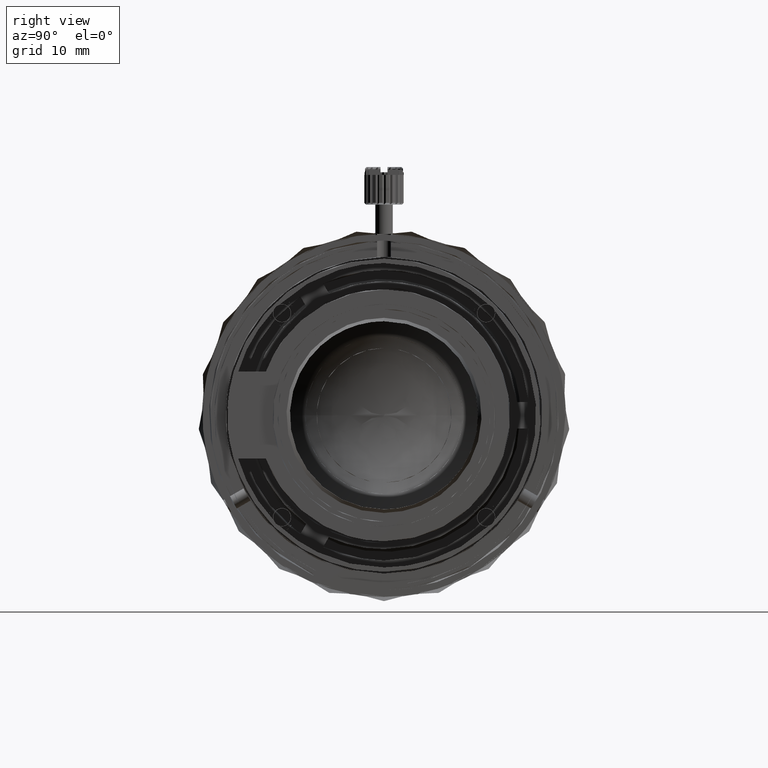
[diagram: clean part render]
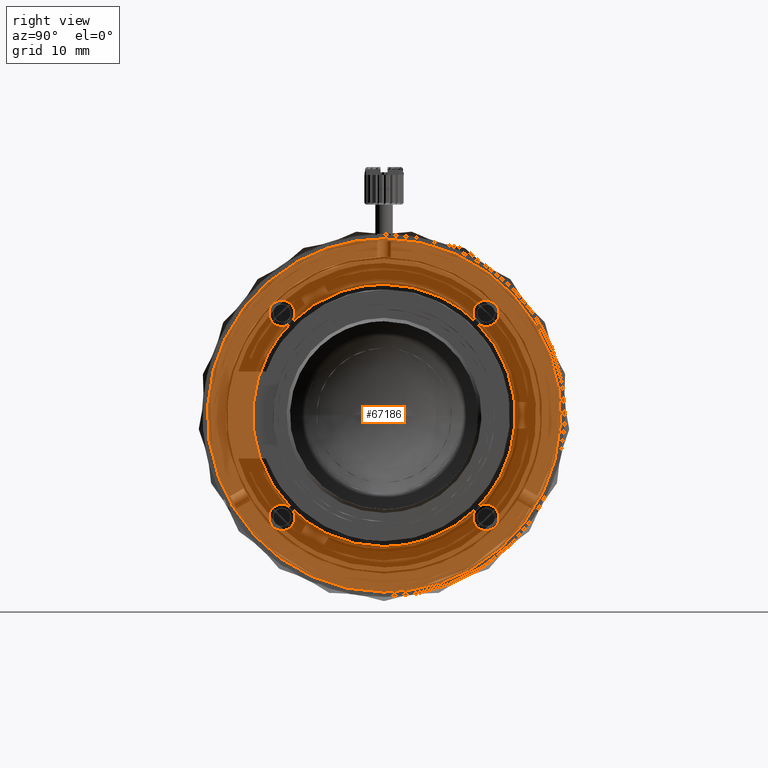
[diagram: same view with one face highlighted and labeled with its STEP entity id]
A machine part, right view. The second image highlights one B-rep face of the part: STEP entity #67186.
In plain terms, the highlighted face is a freeform B-spline surface patch.
Its self-contained STEP definition (entity closure, byte-faithful):
#615 = EDGE_CURVE ( 'NONE', #60305, #60648, #15197, .T. ) ;
#1203 = ORIENTED_EDGE ( 'NONE', *, *, #3595, .F. ) ;
#1358 = ORIENTED_EDGE ( 'NONE', *, *, #7212, .T. ) ;
#1618 = ORIENTED_EDGE ( 'NONE', *, *, #15899, .T. ) ;
#1814 = CARTESIAN_POINT ( 'NONE',  ( -4.150000000000000355, -8.979318433952319428E-10, 15.00000000045299942 ) ) ;
#2361 = CARTESIAN_POINT ( 'NONE',  ( -4.150000000000000355, 12.58863421500936575, 10.46731388467010682 ) ) ;
#3315 = EDGE_CURVE ( 'NONE', #67211, #45209, #41578, .T. ) ;
#3353 = ORIENTED_EDGE ( 'NONE', *, *, #46193, .F. ) ;
#3595 = EDGE_CURVE ( 'NONE', #45209, #21636, #9821, .T. ) ;
#3716 = B_SPLINE_CURVE_WITH_KNOTS ( 'NONE', 3,
 ( #67909, #62953, #19854, #34354, #55908, #20552 ),
 .UNSPECIFIED., .F., .F.,
 ( 4, 2, 4 ),
 ( 0.0000000000000000000, 0.3926990814630215154, 0.7853981629260430308 ),
 .UNSPECIFIED. ) ;
#3932 = CARTESIAN_POINT ( 'NONE',  ( -4.150000000000000355, -11.27522509178702137, -10.20606052589735846 ) ) ;
#4100 = EDGE_CURVE ( 'NONE', #45209, #7778, #65359, .T. ) ;
#4362 = CARTESIAN_POINT ( 'NONE',  ( -4.150000000000000355, -10.17506582079941246, -17.64966874080982606 ) ) ;
#5554 = CARTESIAN_POINT ( 'NONE',  ( -4.149999999999991473, 16.81980515265891540, 4.393398287876367547 ) ) ;
#6243 = CARTESIAN_POINT ( 'NONE',  ( -4.149999999999982592, 16.81980515525010844, -4.393398277956160669 ) ) ;
#6272 = B_SPLINE_CURVE_WITH_KNOTS ( 'NONE', 3,
 ( #68693, #31570, #41515, #4362, #63039, #35846, #26266, #52452, #25926, #25584, #52108, #58431, #47174, #53490, #36548, #57387, #41858, #8962 ),
 .UNSPECIFIED., .F., .F.,
 ( 4, 2, 2, 2, 2, 2, 2, 2, 4 ),
 ( 0.0000000000000000000, 0.3926990816987244171, 0.7853981633974488341, 1.178097245096173307, 1.570796326794897668, 1.963495408493622030, 2.356194490192346613, 2.748893571891070753, 3.141592653589795336 ),
 .UNSPECIFIED. ) ;
#6942 = EDGE_LOOP ( 'NONE', ( #67410, #52367 ) ) ;
#7106 = CARTESIAN_POINT ( 'NONE',  ( -4.150000000000000355, -4.031416531514714130, 14.99999999927601024 ) ) ;
#7212 = EDGE_CURVE ( 'NONE', #41635, #39967, #41081, .T. ) ;
#7778 = VERTEX_POINT ( 'NONE', #43830 ) ;
#7826 = CARTESIAN_POINT ( 'NONE',  ( -4.150000000000000355, -11.47027907257102086, -10.16726189767778088 ) ) ;
#7844 = CARTESIAN_POINT ( 'NONE',  ( -4.150000000000002132, 5.285342439710659868, 19.67505851516099824 ) ) ;
#8290 = EDGE_CURVE ( 'NONE', #60648, #45209, #31226, .T. ) ;
#8533 = CARTESIAN_POINT ( 'NONE',  ( -4.150000000000000355, 10.60660171276651909, 10.60660171475877966 ) ) ;
#8962 = CARTESIAN_POINT ( 'NONE',  ( -4.150000000000000355, -1.209214547576934049E-09, 20.19999682278834996 ) ) ;
#9244 = CARTESIAN_POINT ( 'NONE',  ( -4.150000000000000355, -1.209214547576934049E-09, 20.19999682278834996 ) ) ;
#9424 =( BOUNDED_CURVE ( )  B_SPLINE_CURVE ( 3, ( #55139, #49850, #55824, #60085 ),
 .UNSPECIFIED., .F., .F. ) 
 B_SPLINE_CURVE_WITH_KNOTS ( ( 4, 4 ),
 ( -3.141592653589795336, 0.0000000000000000000 ),
 .UNSPECIFIED. ) 
 CURVE ( )  GEOMETRIC_REPRESENTATION_ITEM ( )  RATIONAL_B_SPLINE_CURVE ( ( 1.000000000000000000, 0.3333333335299312195, 0.3333333335299312195, 1.000000000000000000 ) ) 
 REPRESENTATION_ITEM ( '' )  );
#9479 = B_SPLINE_CURVE_WITH_KNOTS ( 'NONE', 3,
 ( #45694, #14890, #40374, #63305, #13829, #68263, #36464, #58008, #50970, #8533 ),
 .UNSPECIFIED., .F., .F.,
 ( 4, 2, 2, 2, 4 ),
 ( 0.0000000000000000000, 0.5890486226659374935, 1.178097245331874987, 1.767145867997812481, 2.356194490663749974 ),
 .UNSPECIFIED. ) ;
#9821 =( BOUNDED_CURVE ( )  B_SPLINE_CURVE ( 3, ( #11963, #55442, #49807, #28239 ),
 .UNSPECIFIED., .F., .F. ) 
 B_SPLINE_CURVE_WITH_KNOTS ( ( 4, 4 ),
 ( -0.7853981633974479459, 0.0000000000000000000 ),
 .UNSPECIFIED. ) 
 CURVE ( )  GEOMETRIC_REPRESENTATION_ITEM ( )  RATIONAL_B_SPLINE_CURVE ( ( 1.000000000000000000, 0.9492530217248901225, 0.9492530217248901225, 1.000000000000000000 ) ) 
 REPRESENTATION_ITEM ( '' )  );
#10285 = CARTESIAN_POINT ( 'NONE',  ( -4.150000000000000355, 10.09725474134785372, -13.16726188971804667 ) ) ;
#10334 =( BOUNDED_CURVE ( )  B_SPLINE_CURVE ( 3, ( #64719, #10285, #69666, #42496 ),
 .UNSPECIFIED., .F., .F. ) 
 B_SPLINE_CURVE_WITH_KNOTS ( ( 4, 4 ),
 ( -2.356194490663749974, 0.0000000000000000000 ),
 .UNSPECIFIED. ) 
 CURVE ( )  GEOMETRIC_REPRESENTATION_ITEM ( )  RATIONAL_B_SPLINE_CURVE ( ( 1.000000000000000000, 0.5884556216359612124, 0.5884556216359612124, 1.000000000000000000 ) ) 
 REPRESENTATION_ITEM ( '' )  );
#11089 = ORIENTED_EDGE ( 'NONE', *, *, #27256, .F. ) ;
#11285 =( BOUNDED_CURVE ( )  B_SPLINE_CURVE ( 3, ( #55994, #65891, #45423, #39745, #13212, #28448, #17494 ),
 .UNSPECIFIED., .F., .F. ) 
 B_SPLINE_CURVE_WITH_KNOTS ( ( 4, 3, 4 ),
 ( -3.141592653589795336, -1.570796326794897668, 0.0000000000000000000 ),
 .UNSPECIFIED. ) 
 CURVE ( )  GEOMETRIC_REPRESENTATION_ITEM ( )  RATIONAL_B_SPLINE_CURVE ( ( 1.000000000000000000, 0.8047378540760217192, 0.8047378540760217192, 1.000000000000000000, 0.8047378540760217192, 0.8047378540760217192, 1.000000000000000000 ) ) 
 REPRESENTATION_ITEM ( '' )  );
#11963 = CARTESIAN_POINT ( 'NONE',  ( -4.150000000000000355, -10.60660171329034007, 10.60660171423496045 ) ) ;
#12331 = CARTESIAN_POINT ( 'NONE',  ( -4.150000000000000355, 11.66726188448504153, 13.16726188686787857 ) ) ;
#12402 = CARTESIAN_POINT ( 'NONE',  ( -4.150000000000000355, -10.60660171329034007, 10.60660171423496045 ) ) ;
#12572 = CARTESIAN_POINT ( 'NONE',  ( -4.150000000000000355, 10.89166591473469126, -10.32153752169839400 ) ) ;
#13147 = CARTESIAN_POINT ( 'NONE',  ( -4.150000000000002132, 5.285342439710606577, -19.67505851516103021 ) ) ;
#13212 = CARTESIAN_POINT ( 'NONE',  ( -4.150000000000001243, 13.16726189018022097, -12.54594154627559810 ) ) ;
#13301 = CARTESIAN_POINT ( 'NONE',  ( -4.150000000000000355, 13.12846325238405853, 12.05929860940128506 ) ) ;
#13648 = CARTESIAN_POINT ( 'NONE',  ( -4.150000000000000355, 11.86424470571039436, 13.16726188060363611 ) ) ;
#13829 = CARTESIAN_POINT ( 'NONE',  ( -4.150000000000000355, 10.39497406005599878, 12.51537625004849552 ) ) ;
#14131 = VERTEX_POINT ( 'NONE', #38336 ) ;
#14151 = CARTESIAN_POINT ( 'NONE',  ( -4.150000000000000355, 11.66726189412168146, -10.16726189255926016 ) ) ;
#14488 = CARTESIAN_POINT ( 'NONE',  ( -4.150000000000000355, -11.66726188530545905, 13.16726188686787857 ) ) ;
#14890 = CARTESIAN_POINT ( 'NONE',  ( -4.150000000000000355, 11.37058990965285155, 13.16726191915018518 ) ) ;
#15000 =( BOUNDED_CURVE ( )  B_SPLINE_CURVE ( 3, ( #24266, #68066, #45851, #67369 ),
 .UNSPECIFIED., .F., .F. ) 
 B_SPLINE_CURVE_WITH_KNOTS ( ( 4, 4 ),
 ( -3.141592653589795336, 0.0000000000000000000 ),
 .UNSPECIFIED. ) 
 CURVE ( )  GEOMETRIC_REPRESENTATION_ITEM ( )  RATIONAL_B_SPLINE_CURVE ( ( 1.000000000000000000, 0.3333333335299312195, 0.3333333335299312195, 1.000000000000000000 ) ) 
 REPRESENTATION_ITEM ( '' )  );
#15120 = CARTESIAN_POINT ( 'NONE',  ( -4.150000000000000355, -4.102068570306625224E-09, -15.00000000045299942 ) ) ;
#15197 =( BOUNDED_CURVE ( )  B_SPLINE_CURVE ( 3, ( #50780, #17585, #17927, #39486 ),
 .UNSPECIFIED., .F., .F. ) 
 B_SPLINE_CURVE_WITH_KNOTS ( ( 4, 4 ),
 ( -0.7853981633974479459, 0.0000000000000000000 ),
 .UNSPECIFIED. ) 
 CURVE ( )  GEOMETRIC_REPRESENTATION_ITEM ( )  RATIONAL_B_SPLINE_CURVE ( ( 1.000000000000000000, 0.9492530217248901225, 0.9492530217248901225, 1.000000000000000000 ) ) 
 REPRESENTATION_ITEM ( '' )  );
#15486 = CARTESIAN_POINT ( 'NONE',  ( -4.150000000000000355, -10.60660171374550131, -10.60660171377982053 ) ) ;
#15899 = EDGE_CURVE ( 'NONE', #60648, #25179, #64465, .T. ) ;
#17494 = CARTESIAN_POINT ( 'NONE',  ( -4.150000000000000355, 11.66726188480545900, -13.16726188686787857 ) ) ;
#17585 = CARTESIAN_POINT ( 'NONE',  ( -4.149999999999972822, -4.031416534974016308, -14.99999999834628461 ) ) ;
#17679 = CARTESIAN_POINT ( 'NONE',  ( -4.150000000000000355, 10.60660171426930098, -10.60660171325599954 ) ) ;
#17927 = CARTESIAN_POINT ( 'NONE',  ( -4.149999999999973710, -7.755959752653097006, -13.45724368301606511 ) ) ;
#18466 = CARTESIAN_POINT ( 'NONE',  ( -4.150000000000001243, 17.64966874080979764, -10.17506582079948352 ) ) ;
#18813 = CARTESIAN_POINT ( 'NONE',  ( -4.150000000000000355, 16.15477085301822413, -12.41233859625122449 ) ) ;
#19054 = EDGE_CURVE ( 'NONE', #7778, #14131, #51667, .T. ) ;
#19364 =( BOUNDED_CURVE ( )  B_SPLINE_CURVE ( 3, ( #29189, #12572, #34146, #55704 ),
 .UNSPECIFIED., .F., .F. ) 
 B_SPLINE_CURVE_WITH_KNOTS ( ( 4, 4 ),
 ( -0.7853981629260430308, 0.0000000000000000000 ),
 .UNSPECIFIED. ) 
 CURVE ( )  GEOMETRIC_REPRESENTATION_ITEM ( )  RATIONAL_B_SPLINE_CURVE ( ( 1.000000000000000000, 0.9492530217248900115, 0.9492530217248900115, 1.000000000000000000 ) ) 
 REPRESENTATION_ITEM ( '' )  );
#19498 = CARTESIAN_POINT ( 'NONE',  ( -4.150000000000000355, -11.66726189494210075, -10.16726189255926016 ) ) ;
#19803 = CARTESIAN_POINT ( 'NONE',  ( -4.150000000000000355, -10.09725474108574339, 13.16726189064402774 ) ) ;
#19854 = CARTESIAN_POINT ( 'NONE',  ( -4.149999999999999467, 10.91124841672042578, 10.35682465215592707 ) ) ;
#19870 = CARTESIAN_POINT ( 'NONE',  ( -4.150000000000000355, 2.646299192517174603, 20.19999682636510840 ) ) ;
#20159 = CARTESIAN_POINT ( 'NONE',  ( -4.150000000000000355, -10.60660171329034007, 10.60660171423496045 ) ) ;
#20552 = CARTESIAN_POINT ( 'NONE',  ( -4.150000000000000355, 11.66726189444210071, 10.16726189255926016 ) ) ;
#20822 = CARTESIAN_POINT ( 'NONE',  ( -4.150000000000000355, -10.09725474161723469, -13.16726188999999891 ) ) ;
#21133 = EDGE_CURVE ( 'NONE', #24150, #37967, #6272, .T. ) ;
#21636 = VERTEX_POINT ( 'NONE', #26102 ) ;
#23931 = CARTESIAN_POINT ( 'NONE',  ( -4.150000000000001243, 12.58863417646281313, 12.86720996106777903 ) ) ;
#23951 = ORIENTED_EDGE ( 'NONE', *, *, #615, .F. ) ;
#24150 = VERTEX_POINT ( 'NONE', #57818 ) ;
#24266 = CARTESIAN_POINT ( 'NONE',  ( -4.150000000000000355, -11.66726188498503980, -13.16726188686787857 ) ) ;
#24433 = VERTEX_POINT ( 'NONE', #61642 ) ;
#24471 = CARTESIAN_POINT ( 'NONE',  ( -4.150000000000000355, 20.19999682636510840, 2.646299192517143517 ) ) ;
#24830 = ORIENTED_EDGE ( 'NONE', *, *, #30109, .F. ) ;
#25168 = CARTESIAN_POINT ( 'NONE',  ( -4.150000000000000355, -5.524118283208140117E-09, -20.19999682278834996 ) ) ;
#25179 = VERTEX_POINT ( 'NONE', #57391 ) ;
#25403 = EDGE_CURVE ( 'NONE', #39967, #14131, #9479, .T. ) ;
#25584 = CARTESIAN_POINT ( 'NONE',  ( -4.150000000000001243, -20.19999682636511551, 2.646299192517133303 ) ) ;
#25926 = CARTESIAN_POINT ( 'NONE',  ( -4.150000000000001243, -20.19999682636509419, -2.646299192517132859 ) ) ;
#26038 = ORIENTED_EDGE ( 'NONE', *, *, #4100, .F. ) ;
#26102 = CARTESIAN_POINT ( 'NONE',  ( -4.150000000000000355, -11.66726189462167973, 10.16726189255926016 ) ) ;
#26237 = CARTESIAN_POINT ( 'NONE',  ( -4.149999999999991473, -16.81980515344790916, 4.393398284855758007 ) ) ;
#26266 = CARTESIAN_POINT ( 'NONE',  ( -4.150000000000001243, -17.64966874080983317, -10.17506582079941246 ) ) ;
#26801 = CARTESIAN_POINT ( 'NONE',  ( -4.150000000000000355, -9.496439017096891533, -11.71676441977053429 ) ) ;
#27114 = CARTESIAN_POINT ( 'NONE',  ( -4.150000000000000355, 10.60660171426930098, -10.60660171325599954 ) ) ;
#27256 = EDGE_CURVE ( 'NONE', #60648, #24433, #59070, .T. ) ;
#28239 = CARTESIAN_POINT ( 'NONE',  ( -4.150000000000000355, -11.66726189462167973, 10.16726189255926016 ) ) ;
#28448 = CARTESIAN_POINT ( 'NONE',  ( -4.150000000000001243, 12.54594154658325422, -13.16726189000000247 ) ) ;
#28911 = B_SPLINE_CURVE_WITH_KNOTS ( 'NONE', 3,
 ( #9244, #19870, #7844, #41446, #29764, #40039, #30125, #30806, #24471, #56612, #35775, #18466, #18813, #57322, #52379, #13147, #62969, #25168 ),
 .UNSPECIFIED., .F., .F.,
 ( 4, 2, 2, 2, 2, 2, 2, 2, 4 ),
 ( 0.0000000000000000000, 0.3926990816987244171, 0.7853981633974488341, 1.178097245096173307, 1.570796326794897668, 1.963495408493622030, 2.356194490192346613, 2.748893571891070753, 3.141592653589795336 ),
 .UNSPECIFIED. ) ;
#29189 = CARTESIAN_POINT ( 'NONE',  ( -4.150000000000000355, 10.60660171426930098, -10.60660171325599954 ) ) ;
#29377 = CARTESIAN_POINT ( 'NONE',  ( -4.150000000000000355, 28.90991477700000090, 0.0000000000000000000 ) ) ;
#29677 = CARTESIAN_POINT ( 'NONE',  ( -4.150000000000000355, 4.031416528820919609, 14.99999999999999645 ) ) ;
#29764 = CARTESIAN_POINT ( 'NONE',  ( -4.150000000000001243, 12.41233859625125469, 16.15477085301819571 ) ) ;
#30109 = EDGE_CURVE ( 'NONE', #45648, #52285, #10334, .T. ) ;
#30125 = CARTESIAN_POINT ( 'NONE',  ( -4.150000000000000355, 17.64966874080982251, 10.17506582079942667 ) ) ;
#30272 = CARTESIAN_POINT ( 'NONE',  ( -4.150000000000001243, 13.16726188060363611, 11.86424470571039080 ) ) ;
#30615 = CARTESIAN_POINT ( 'NONE',  ( -4.149999999999999467, 12.05929871540430653, 10.20606052589735846 ) ) ;
#30806 = CARTESIAN_POINT ( 'NONE',  ( -4.150000000000001243, 19.67505851516099469, 5.285342439710658979 ) ) ;
#31226 =( BOUNDED_CURVE ( )  B_SPLINE_CURVE ( 3, ( #48494, #42528, #26237, #69697 ),
 .UNSPECIFIED., .F., .F. ) 
 B_SPLINE_CURVE_WITH_KNOTS ( ( 4, 4 ),
 ( -1.570796326794895004, 0.0000000000000000000 ),
 .UNSPECIFIED. ) 
 CURVE ( )  GEOMETRIC_REPRESENTATION_ITEM ( )  RATIONAL_B_SPLINE_CURVE ( ( 1.000000000000000000, 0.8047378540760214971, 0.8047378540760214971, 1.000000000000000000 ) ) 
 REPRESENTATION_ITEM ( '' )  );
#31570 = CARTESIAN_POINT ( 'NONE',  ( -4.150000000000000355, -2.646299192517171051, -20.19999682636510840 ) ) ;
#33943 = EDGE_LOOP ( 'NONE', ( #24830, #60577, #3353, #50372, #39864, #1358, #56880, #58230, #26038, #37013, #61230, #1203, #43891, #1618, #39296, #11089, #23951, #68012 ) ) ;
#33966 = CARTESIAN_POINT ( 'NONE',  ( -4.149999999999999467, -7.755959749549586668, 13.45724368480474631 ) ) ;
#34146 = CARTESIAN_POINT ( 'NONE',  ( -4.150000000000000355, 11.26412023650259897, -10.16726189016537241 ) ) ;
#34354 = CARTESIAN_POINT ( 'NONE',  ( -4.150000000000000355, 11.27522509178702315, 10.20606052589735668 ) ) ;
#34525 = CARTESIAN_POINT ( 'NONE',  ( -4.150000000000001243, 13.12846325238406031, 11.27522513997021569 ) ) ;
#34702 = CARTESIAN_POINT ( 'NONE',  ( -4.150000000000000355, -10.60660171374550131, -10.60660171377982053 ) ) ;
#35775 = CARTESIAN_POINT ( 'NONE',  ( -4.150000000000001243, 19.67505851516103021, -5.285342439710596807 ) ) ;
#35846 = CARTESIAN_POINT ( 'NONE',  ( -4.150000000000000355, -16.15477085301819216, -12.41233859625125646 ) ) ;
#36464 = CARTESIAN_POINT ( 'NONE',  ( -4.149999999999999467, 10.13820607456090350, 11.66559791635756937 ) ) ;
#36548 = CARTESIAN_POINT ( 'NONE',  ( -4.150000000000001243, -10.17506582079947108, 17.64966874080980830 ) ) ;
#37013 = ORIENTED_EDGE ( 'NONE', *, *, #3315, .F. ) ;
#37131 = CARTESIAN_POINT ( 'NONE',  ( -4.150000000000000355, -11.66726188530545905, 13.16726188686787857 ) ) ;
#37967 = VERTEX_POINT ( 'NONE', #55711 ) ;
#38089 = CARTESIAN_POINT ( 'NONE',  ( -4.149999999999975486, 7.755959751245741884, -13.45724368544729899 ) ) ;
#38336 = CARTESIAN_POINT ( 'NONE',  ( -4.150000000000000355, 10.60660171276651909, 10.60660171475877966 ) ) ;
#39296 = ORIENTED_EDGE ( 'NONE', *, *, #69208, .F. ) ;
#39486 = CARTESIAN_POINT ( 'NONE',  ( -4.150000000000000355, -10.60660171374550131, -10.60660171377982053 ) ) ;
#39745 = CARTESIAN_POINT ( 'NONE',  ( -4.150000000000000355, 13.16726189000000069, -11.66726188969234634 ) ) ;
#39864 = ORIENTED_EDGE ( 'NONE', *, *, #42095, .T. ) ;
#39967 = VERTEX_POINT ( 'NONE', #12331 ) ;
#40039 = CARTESIAN_POINT ( 'NONE',  ( -4.150000000000001243, 16.15477085301819571, 12.41233859625125646 ) ) ;
#40188 = EDGE_CURVE ( 'NONE', #52285, #60305, #44572, .T. ) ;
#40190 = CARTESIAN_POINT ( 'NONE',  ( -4.150000000000002132, 12.05929868649439030, 13.12846325238405676 ) ) ;
#40374 = CARTESIAN_POINT ( 'NONE',  ( -4.149999999999999467, 11.08058021520703917, 13.07928839319237291 ) ) ;
#41081 = B_SPLINE_CURVE_WITH_KNOTS ( 'NONE', 3,
 ( #68078, #56420, #30615, #66682, #2361, #67381, #51484, #34525, #61380, #30272, #13301, #57470, #67026, #23931, #45510, #40190, #13648, #62082 ),
 .UNSPECIFIED., .F., .F.,
 ( 4, 2, 2, 2, 2, 2, 2, 2, 4 ),
 ( 0.0000000000000000000, 0.3926990816987244171, 0.7853981633974488341, 1.178097245096173307, 1.570796326794897668, 1.963495408493622030, 2.356194490192346613, 2.748893571891070753, 3.141592653589795336 ),
 .UNSPECIFIED. ) ;
#41446 = CARTESIAN_POINT ( 'NONE',  ( -4.150000000000000355, 10.17506582079941957, 17.64966874080982606 ) ) ;
#41515 = CARTESIAN_POINT ( 'NONE',  ( -4.149999999999999467, -5.285342439710668749, -19.67505851516099469 ) ) ;
#41578 =( BOUNDED_CURVE ( )  B_SPLINE_CURVE ( 3, ( #14488, #19803, #57605, #20159 ),
 .UNSPECIFIED., .F., .F. ) 
 B_SPLINE_CURVE_WITH_KNOTS ( ( 4, 4 ),
 ( -2.356194490192344837, 0.0000000000000000000 ),
 .UNSPECIFIED. ) 
 CURVE ( )  GEOMETRIC_REPRESENTATION_ITEM ( )  RATIONAL_B_SPLINE_CURVE ( ( 1.000000000000000000, 0.5884556213280012216, 0.5884556213280012216, 1.000000000000000000 ) ) 
 REPRESENTATION_ITEM ( '' )  );
#41635 = VERTEX_POINT ( 'NONE', #43322 ) ;
#41858 = CARTESIAN_POINT ( 'NONE',  ( -4.150000000000000355, -2.646299192517049814, 20.19999682636511196 ) ) ;
#42095 = EDGE_CURVE ( 'NONE', #14131, #41635, #3716, .T. ) ;
#42496 = CARTESIAN_POINT ( 'NONE',  ( -4.150000000000000355, 10.60660171426930098, -10.60660171325599954 ) ) ;
#42528 = CARTESIAN_POINT ( 'NONE',  ( -4.149999999999982592, -16.81980515446111824, -4.393398280976772874 ) ) ;
#42998 = CARTESIAN_POINT ( 'NONE',  ( -4.150000000000000355, -4.102068570306625224E-09, -15.00000000045299942 ) ) ;
#43322 = CARTESIAN_POINT ( 'NONE',  ( -4.150000000000000355, 11.66726189444210071, 10.16726189255926016 ) ) ;
#43830 = CARTESIAN_POINT ( 'NONE',  ( -4.150000000000000355, -8.979318433952319428E-10, 15.00000000045299942 ) ) ;
#43891 = ORIENTED_EDGE ( 'NONE', *, *, #8290, .F. ) ;
#44572 =( BOUNDED_CURVE ( )  B_SPLINE_CURVE ( 3, ( #63891, #38089, #53295, #15120 ),
 .UNSPECIFIED., .F., .F. ) 
 B_SPLINE_CURVE_WITH_KNOTS ( ( 4, 4 ),
 ( -0.7853981633974479459, 0.0000000000000000000 ),
 .UNSPECIFIED. ) 
 CURVE ( )  GEOMETRIC_REPRESENTATION_ITEM ( )  RATIONAL_B_SPLINE_CURVE ( ( 1.000000000000000000, 0.9492530215973289387, 0.9492530215973289387, 1.000000000000000000 ) ) 
 REPRESENTATION_ITEM ( '' )  );
#45209 = VERTEX_POINT ( 'NONE', #63955 ) ;
#45423 = CARTESIAN_POINT ( 'NONE',  ( -4.150000000000001243, 13.16726188981978218, -10.78858223310909459 ) ) ;
#45510 = CARTESIAN_POINT ( 'NONE',  ( -4.150000000000000355, 12.42327536156099121, 12.97769912612548815 ) ) ;
#45648 = VERTEX_POINT ( 'NONE', #65164 ) ;
#45658 = CARTESIAN_POINT ( 'NONE',  ( -4.150000000000000355, 0.0000000000000000000, -28.90991477700000090 ) ) ;
#45694 = CARTESIAN_POINT ( 'NONE',  ( -4.150000000000000355, 11.66726188448504153, 13.16726188686787857 ) ) ;
#45851 = CARTESIAN_POINT ( 'NONE',  ( -4.150000000000000355, -14.66726188884592830, -10.16726189123062163 ) ) ;
#46008 = FACE_BOUND ( 'NONE', #33943, .T. ) ;
#46193 = EDGE_CURVE ( 'NONE', #52285, #47989, #19364, .T. ) ;
#46319 = CARTESIAN_POINT ( 'NONE',  ( -4.150000000000000355, -8.979318433952319428E-10, 15.00000000045299942 ) ) ;
#46732 = CARTESIAN_POINT ( 'NONE',  ( -4.150000000000000355, -10.74588960181860386, -10.46731381721364151 ) ) ;
#47174 = CARTESIAN_POINT ( 'NONE',  ( -4.150000000000000355, -16.15477085301822413, 12.41233859625122449 ) ) ;
#47989 = VERTEX_POINT ( 'NONE', #14151 ) ;
#48494 = CARTESIAN_POINT ( 'NONE',  ( -4.150000000000000355, -10.60660171374550131, -10.60660171377982053 ) ) ;
#49807 = CARTESIAN_POINT ( 'NONE',  ( -4.150000000000000355, -11.26412023711790589, 10.16726188999999714 ) ) ;
#49850 = CARTESIAN_POINT ( 'NONE',  ( -4.150000000000000355, -14.66726188850000412, 10.16726189053876084 ) ) ;
#50372 = ORIENTED_EDGE ( 'NONE', *, *, #66452, .F. ) ;
#50766 = EDGE_CURVE ( 'NONE', #47989, #45648, #11285, .T. ) ;
#50780 = CARTESIAN_POINT ( 'NONE',  ( -4.150000000000000355, -4.102068570306625224E-09, -15.00000000045299942 ) ) ;
#50970 = CARTESIAN_POINT ( 'NONE',  ( -4.150000000000000355, 10.39682292619909276, 10.81638049283314551 ) ) ;
#51484 = CARTESIAN_POINT ( 'NONE',  ( -4.150000000000000355, 12.97769912612548993, 10.91124831071740608 ) ) ;
#51667 =( BOUNDED_CURVE ( )  B_SPLINE_CURVE ( 3, ( #46319, #29677, #55241, #60529 ),
 .UNSPECIFIED., .F., .F. ) 
 B_SPLINE_CURVE_WITH_KNOTS ( ( 4, 4 ),
 ( -0.7853981633974479459, 0.0000000000000000000 ),
 .UNSPECIFIED. ) 
 CURVE ( )  GEOMETRIC_REPRESENTATION_ITEM ( )  RATIONAL_B_SPLINE_CURVE ( ( 1.000000000000000000, 0.9492530217248901225, 0.9492530217248901225, 1.000000000000000000 ) ) 
 REPRESENTATION_ITEM ( '' )  );
#52108 = CARTESIAN_POINT ( 'NONE',  ( -4.150000000000000355, -19.67505851516102666, 5.285342439710601248 ) ) ;
#52285 = VERTEX_POINT ( 'NONE', #17679 ) ;
#52358 = CARTESIAN_POINT ( 'NONE',  ( -4.149999999999999467, -10.91124841672042933, -10.35682465215592707 ) ) ;
#52367 = ORIENTED_EDGE ( 'NONE', *, *, #53116, .T. ) ;
#52379 = CARTESIAN_POINT ( 'NONE',  ( -4.150000000000000355, 10.17506582079947819, -17.64966874080979409 ) ) ;
#52452 = CARTESIAN_POINT ( 'NONE',  ( -4.150000000000001243, -19.67505851516099469, -5.285342439710667861 ) ) ;
#53116 = EDGE_CURVE ( 'NONE', #37967, #24150, #28911, .T. ) ;
#53295 = CARTESIAN_POINT ( 'NONE',  ( -4.149999999999973710, 4.031416528075915551, -15.00000000165371539 ) ) ;
#53490 = CARTESIAN_POINT ( 'NONE',  ( -4.150000000000000355, -12.41233859625122626, 16.15477085301822768 ) ) ;
#53987 = CARTESIAN_POINT ( 'NONE',  ( -4.150000000000000355, 10.60660171276651909, 10.60660171475877966 ) ) ;
#54196 = CARTESIAN_POINT ( 'NONE',  ( -4.150000000000000355, -10.60660171374550131, -10.60660171377982053 ) ) ;
#55139 = CARTESIAN_POINT ( 'NONE',  ( -4.150000000000000355, -11.66726189462167973, 10.16726189255926016 ) ) ;
#55241 = CARTESIAN_POINT ( 'NONE',  ( -4.149999999999999467, 7.755959747132849635, 13.45724368619760902 ) ) ;
#55442 = CARTESIAN_POINT ( 'NONE',  ( -4.150000000000000355, -10.89166591528671368, 10.32153752138023606 ) ) ;
#55704 = CARTESIAN_POINT ( 'NONE',  ( -4.150000000000000355, 11.66726189412168146, -10.16726189255926016 ) ) ;
#55711 = CARTESIAN_POINT ( 'NONE',  ( -4.150000000000000355, -1.209214547576934049E-09, 20.19999682278834996 ) ) ;
#55824 = CARTESIAN_POINT ( 'NONE',  ( -4.150000000000000355, -14.66726188884593363, 13.16726188876938153 ) ) ;
#55908 = CARTESIAN_POINT ( 'NONE',  ( -4.150000000000000355, 11.47027907257102264, 10.16726189767777910 ) ) ;
#55994 = CARTESIAN_POINT ( 'NONE',  ( -4.150000000000000355, 11.66726189412168146, -10.16726189255926016 ) ) ;
#56420 = CARTESIAN_POINT ( 'NONE',  ( -4.150000000000000355, 11.86424469607375265, 10.16726185913122471 ) ) ;
#56612 = CARTESIAN_POINT ( 'NONE',  ( -4.150000000000000355, 20.19999682636510130, -2.646299192517139076 ) ) ;
#56880 = ORIENTED_EDGE ( 'NONE', *, *, #25403, .T. ) ;
#57322 = CARTESIAN_POINT ( 'NONE',  ( -4.150000000000001243, 12.41233859625122449, -16.15477085301822413 ) ) ;
#57387 = CARTESIAN_POINT ( 'NONE',  ( -4.150000000000001243, -5.285342439710609241, 19.67505851516101956 ) ) ;
#57391 = CARTESIAN_POINT ( 'NONE',  ( -4.150000000000000355, -11.66726189494210075, -10.16726189255926016 ) ) ;
#57470 = CARTESIAN_POINT ( 'NONE',  ( -4.150000000000001243, 12.97769912612548637, 12.42327543865409112 ) ) ;
#57605 = CARTESIAN_POINT ( 'NONE',  ( -4.150000000000000355, -9.496439016256786658, 11.71676441930110713 ) ) ;
#57818 = CARTESIAN_POINT ( 'NONE',  ( -4.150000000000000355, -5.524118283208140117E-09, -20.19999682278834996 ) ) ;
#58008 = CARTESIAN_POINT ( 'NONE',  ( -4.149999999999999467, 10.25396183588664556, 11.08365490028322853 ) ) ;
#58230 = ORIENTED_EDGE ( 'NONE', *, *, #19054, .F. ) ;
#58431 = CARTESIAN_POINT ( 'NONE',  ( -4.150000000000001243, -17.64966874080980119, 10.17506582079948174 ) ) ;
#58764 = B_SPLINE_SURFACE_WITH_KNOTS ( 'NONE', 1, 1, ( 
 ( #62236, #29377 ),
 ( #67175, #45658 ) ),
 .UNSPECIFIED., .F., .F., .F.,
 ( 2, 2 ),
 ( 2, 2 ),
 ( 0.0000000000000000000, 1.000000000000000000 ),
 ( 0.0000000000000000000, 1.000000000000000000 ),
 .UNSPECIFIED. ) ;
#59070 =( BOUNDED_CURVE ( )  B_SPLINE_CURVE ( 3, ( #15486, #26801, #20822, #69564 ),
 .UNSPECIFIED., .F., .F. ) 
 B_SPLINE_CURVE_WITH_KNOTS ( ( 4, 4 ),
 ( -2.356194490192344837, 0.0000000000000000000 ),
 .UNSPECIFIED. ) 
 CURVE ( )  GEOMETRIC_REPRESENTATION_ITEM ( )  RATIONAL_B_SPLINE_CURVE ( ( 1.000000000000000000, 0.5884556216359608793, 0.5884556216359608793, 1.000000000000000000 ) ) 
 REPRESENTATION_ITEM ( '' )  );
#59774 = EDGE_CURVE ( 'NONE', #21636, #67211, #9424, .T. ) ;
#60085 = CARTESIAN_POINT ( 'NONE',  ( -4.150000000000000355, -11.66726188530545905, 13.16726188686787857 ) ) ;
#60305 = VERTEX_POINT ( 'NONE', #42998 ) ;
#60529 = CARTESIAN_POINT ( 'NONE',  ( -4.150000000000000355, 10.60660171276651909, 10.60660171475877966 ) ) ;
#60577 = ORIENTED_EDGE ( 'NONE', *, *, #50766, .F. ) ;
#60648 = VERTEX_POINT ( 'NONE', #54196 ) ;
#61017 =( BOUNDED_CURVE ( )  B_SPLINE_CURVE ( 3, ( #53987, #5554, #6243, #27114 ),
 .UNSPECIFIED., .F., .F. ) 
 B_SPLINE_CURVE_WITH_KNOTS ( ( 4, 4 ),
 ( -1.570796326794895004, 0.0000000000000000000 ),
 .UNSPECIFIED. ) 
 CURVE ( )  GEOMETRIC_REPRESENTATION_ITEM ( )  RATIONAL_B_SPLINE_CURVE ( ( 1.000000000000000000, 0.8047378540760217192, 0.8047378540760217192, 1.000000000000000000 ) ) 
 REPRESENTATION_ITEM ( '' )  );
#61230 = ORIENTED_EDGE ( 'NONE', *, *, #59774, .F. ) ;
#61380 = CARTESIAN_POINT ( 'NONE',  ( -4.150000000000000355, 13.16726188060363256, 11.47027904366111350 ) ) ;
#61642 = CARTESIAN_POINT ( 'NONE',  ( -4.150000000000000355, -11.66726188498503980, -13.16726188686787857 ) ) ;
#62082 = CARTESIAN_POINT ( 'NONE',  ( -4.150000000000000355, 11.66726188448504153, 13.16726188686787857 ) ) ;
#62236 = CARTESIAN_POINT ( 'NONE',  ( -4.150000000000000355, 0.0000000000000000000, 28.90991477700000090 ) ) ;
#62953 = CARTESIAN_POINT ( 'NONE',  ( -4.150000000000000355, 10.74588960181860209, 10.46731381721364151 ) ) ;
#62969 = CARTESIAN_POINT ( 'NONE',  ( -4.150000000000000355, 2.646299192517045373, -20.19999682636511196 ) ) ;
#63039 = CARTESIAN_POINT ( 'NONE',  ( -4.150000000000000355, -12.41233859625125291, -16.15477085301819571 ) ) ;
#63305 = CARTESIAN_POINT ( 'NONE',  ( -4.150000000000000355, 10.58723282790994880, 12.74964420779767060 ) ) ;
#63891 = CARTESIAN_POINT ( 'NONE',  ( -4.150000000000000355, 10.60660171426930098, -10.60660171325599954 ) ) ;
#63955 = CARTESIAN_POINT ( 'NONE',  ( -4.150000000000000355, -10.60660171329034007, 10.60660171423496045 ) ) ;
#64465 = B_SPLINE_CURVE_WITH_KNOTS ( 'NONE', 3,
 ( #34702, #46732, #52358, #3932, #7826, #19498 ),
 .UNSPECIFIED., .F., .F.,
 ( 4, 2, 4 ),
 ( 0.0000000000000000000, 0.3926990816987239730, 0.7853981633974479459 ),
 .UNSPECIFIED. ) ;
#64719 = CARTESIAN_POINT ( 'NONE',  ( -4.150000000000000355, 11.66726188480545900, -13.16726188686787857 ) ) ;
#65164 = CARTESIAN_POINT ( 'NONE',  ( -4.150000000000000355, 11.66726188480545900, -13.16726188686787857 ) ) ;
#65359 =( BOUNDED_CURVE ( )  B_SPLINE_CURVE ( 3, ( #12402, #33966, #7106, #1814 ),
 .UNSPECIFIED., .F., .F. ) 
 B_SPLINE_CURVE_WITH_KNOTS ( ( 4, 4 ),
 ( -0.7853981633974479459, 0.0000000000000000000 ),
 .UNSPECIFIED. ) 
 CURVE ( )  GEOMETRIC_REPRESENTATION_ITEM ( )  RATIONAL_B_SPLINE_CURVE ( ( 1.000000000000000000, 0.9492530217248901225, 0.9492530217248901225, 1.000000000000000000 ) ) 
 REPRESENTATION_ITEM ( '' )  );
#65891 = CARTESIAN_POINT ( 'NONE',  ( -4.150000000000001243, 12.54594154596794553, -10.16726188963956190 ) ) ;
#66452 = EDGE_CURVE ( 'NONE', #14131, #52285, #61017, .T. ) ;
#66682 = CARTESIAN_POINT ( 'NONE',  ( -4.150000000000000355, 12.42327539047090390, 10.35682465215592529 ) ) ;
#67026 = CARTESIAN_POINT ( 'NONE',  ( -4.150000000000000355, 12.86720996106777726, 12.58863417646281491 ) ) ;
#67175 = CARTESIAN_POINT ( 'NONE',  ( -4.150000000000000355, -28.90991477700000090, 0.0000000000000000000 ) ) ;
#67186 = ADVANCED_FACE ( 'NONE', ( #46008, #68226 ), #58764, .F. ) ;
#67211 = VERTEX_POINT ( 'NONE', #37131 ) ;
#67369 = CARTESIAN_POINT ( 'NONE',  ( -4.150000000000000355, -11.66726189494210075, -10.16726189255926016 ) ) ;
#67381 = CARTESIAN_POINT ( 'NONE',  ( -4.150000000000001243, 12.86720992252122286, 10.74588959218196393 ) ) ;
#67410 = ORIENTED_EDGE ( 'NONE', *, *, #21133, .T. ) ;
#67909 = CARTESIAN_POINT ( 'NONE',  ( -4.150000000000000355, 10.60660171276651909, 10.60660171475877966 ) ) ;
#68012 = ORIENTED_EDGE ( 'NONE', *, *, #40188, .F. ) ;
#68066 = CARTESIAN_POINT ( 'NONE',  ( -4.150000000000000355, -14.66726188850000234, -13.16726188946123877 ) ) ;
#68078 = CARTESIAN_POINT ( 'NONE',  ( -4.150000000000000355, 11.66726189444210071, 10.16726189255926016 ) ) ;
#68226 = FACE_OUTER_BOUND ( 'NONE', #6942, .T. ) ;
#68263 = CARTESIAN_POINT ( 'NONE',  ( -4.150000000000001243, 10.16791111799728498, 11.96719785582671847 ) ) ;
#68693 = CARTESIAN_POINT ( 'NONE',  ( -4.150000000000000355, -5.524118283208140117E-09, -20.19999682278834996 ) ) ;
#69208 = EDGE_CURVE ( 'NONE', #24433, #25179, #15000, .T. ) ;
#69564 = CARTESIAN_POINT ( 'NONE',  ( -4.150000000000000355, -11.66726188498503980, -13.16726188686787857 ) ) ;
#69666 = CARTESIAN_POINT ( 'NONE',  ( -4.150000000000000355, 9.496439017088002643, -11.71676441938068436 ) ) ;
#69697 = CARTESIAN_POINT ( 'NONE',  ( -4.150000000000000355, -10.60660171329034007, 10.60660171423496045 ) ) ;